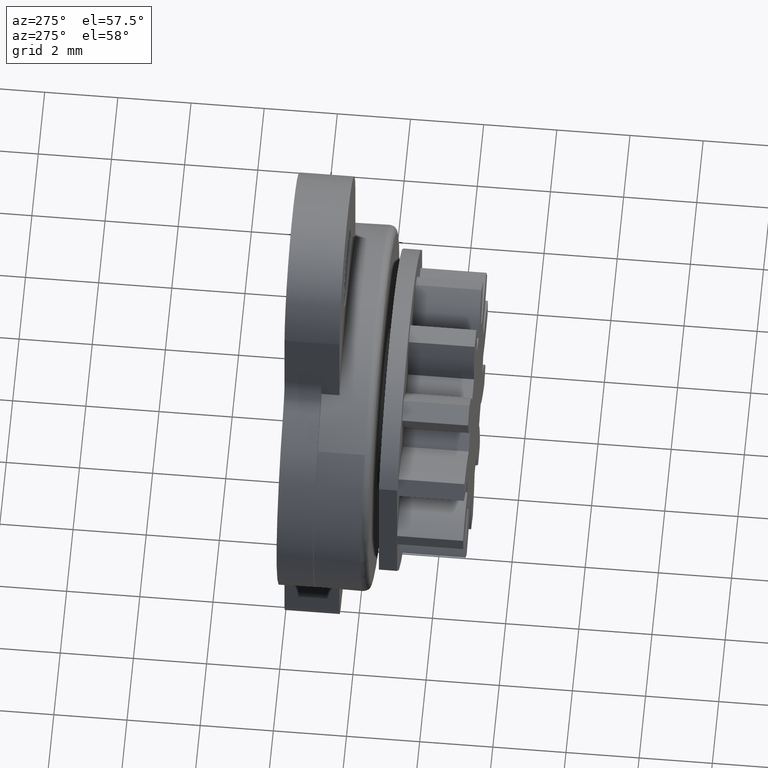
[diagram: clean part render]
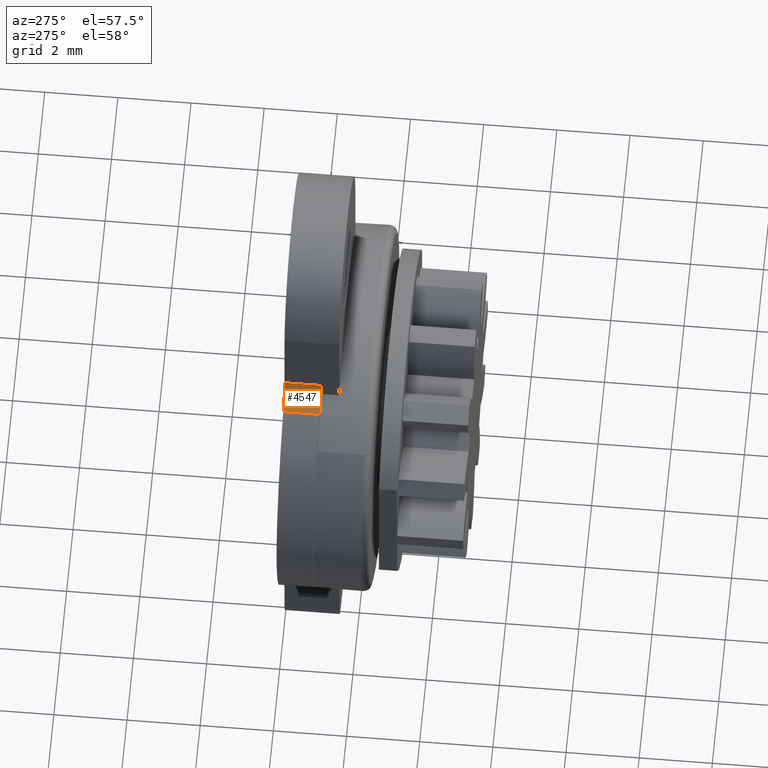
[diagram: same view with one face highlighted and labeled with its STEP entity id]
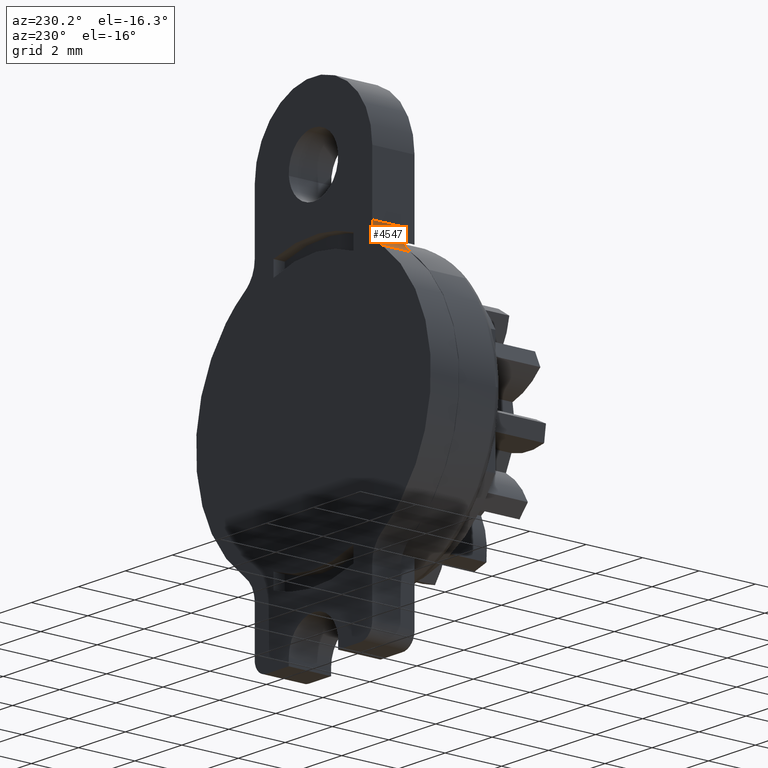
[diagram: same view with one face highlighted and labeled with its STEP entity id]
A machine part, auxiliary view. The second image highlights one B-rep face of the part: STEP entity #4547.
A second angle (auxiliary view) of the same face is appended — the face is thin or edge-on in the first view.
In plain terms, the highlighted face is a freeform B-spline surface patch.
Its self-contained STEP definition (entity closure, byte-faithful):
#3920=CARTESIAN_POINT('',(-2.500000000000000,0.0,4.873397172404481));
#3921=VERTEX_POINT('',#3920);
#4046=CARTESIAN_POINT('',(-2.916666666666675,0.0,4.061164310337065));
#4047=VERTEX_POINT('',#4046);
#4068=CARTESIAN_POINT('',(-2.916666666666673,0.0,4.061164310337063));
#4069=CARTESIAN_POINT('',(-2.499999999999999,0.0,4.360407996361898));
#4070=CARTESIAN_POINT('',(-2.500000000000000,0.0,4.873397172404481));
#4078=(BOUNDED_CURVE()B_SPLINE_CURVE(2,(#4068,#4069,#4070),.UNSPECIFIED.,.F.,.U.)CURVE()GEOMETRIC_REPRESENTATION_ITEM()QUASI_UNIFORM_CURVE()RATIONAL_B_SPLINE_CURVE((1.0,0.889756521002607,1.0))REPRESENTATION_ITEM(''));
#4079=EDGE_CURVE('',#4047,#3921,#4078,.T.);
#4491=CARTESIAN_POINT('',(-2.500000000000000,-1.0,4.873397172404481));
#4492=VERTEX_POINT('',#4491);
#4493=CARTESIAN_POINT('',(-2.500000000000000,-1.0,4.873397172404481));
#4494=CARTESIAN_POINT('',(-2.500000000000000,0.0,4.873397172404481));
#4495=QUASI_UNIFORM_CURVE('',1,(#4493,#4494),.UNSPECIFIED.,.F.,.U.);
#4496=EDGE_CURVE('',#4492,#3921,#4495,.T.);
#4509=CARTESIAN_POINT('',(-2.923776857116350,-1.025000000000000,4.056104758634912));
#4510=CARTESIAN_POINT('',(-2.923776857116350,0.025625000000000,4.056104758634912));
#4511=CARTESIAN_POINT('',(-2.476063873036998,-1.025000000000000,4.371759937184946));
#4512=CARTESIAN_POINT('',(-2.476063873036998,0.025625000000000,4.371759937184946));
#4513=CARTESIAN_POINT('',(-2.501039917149331,-1.025000000000000,4.918990514802088));
#4514=CARTESIAN_POINT('',(-2.501039917149331,0.025625000000000,4.918990514802088));
#4522=(BOUNDED_SURFACE()B_SPLINE_SURFACE(1,2,((#4509,#4511,#4513),(#4510,#4512,#4514)),.UNSPECIFIED.,.F.,.F.,.U.)B_SPLINE_SURFACE_WITH_KNOTS((2,2),(3,3),(0.0,1.0),(0.0,0.989714899561461),.UNSPECIFIED.)GEOMETRIC_REPRESENTATION_ITEM()RATIONAL_B_SPLINE_SURFACE(((1.0,0.875909256044481,0.997447428469849),(1.0,0.875909256044481,0.997447428469849)))REPRESENTATION_ITEM('')SURFACE());
#4523=ORIENTED_EDGE('',*,*,#4079,.F.);
#4524=CARTESIAN_POINT('',(-2.916666666666675,-1.0,4.061164310337071));
#4525=VERTEX_POINT('',#4524);
#4526=CARTESIAN_POINT('',(-2.916666666666675,-1.0,4.061164310337071));
#4527=CARTESIAN_POINT('',(-2.916666666666675,0.0,4.061164310337065));
#4528=QUASI_UNIFORM_CURVE('',1,(#4526,#4527),.UNSPECIFIED.,.F.,.U.);
#4529=EDGE_CURVE('',#4525,#4047,#4528,.T.);
#4530=ORIENTED_EDGE('',*,*,#4529,.F.);
#4531=CARTESIAN_POINT('',(-2.916666666666671,-1.0,4.061164310337064));
#4532=CARTESIAN_POINT('',(-2.500000000000000,-1.0,4.360407996361901));
#4533=CARTESIAN_POINT('',(-2.500000000000000,-1.0,4.873397172404481));
#4541=(BOUNDED_CURVE()B_SPLINE_CURVE(2,(#4531,#4532,#4533),.UNSPECIFIED.,.F.,.U.)CURVE()GEOMETRIC_REPRESENTATION_ITEM()QUASI_UNIFORM_CURVE()RATIONAL_B_SPLINE_CURVE((1.0,0.889756521002608,1.0))REPRESENTATION_ITEM(''));
#4542=EDGE_CURVE('',#4525,#4492,#4541,.T.);
#4543=ORIENTED_EDGE('',*,*,#4542,.T.);
#4544=ORIENTED_EDGE('',*,*,#4496,.T.);
#4545=EDGE_LOOP('',(#4523,#4530,#4543,#4544));
#4546=FACE_OUTER_BOUND('',#4545,.T.);
#4547=ADVANCED_FACE('',(#4546),#4522,.F.);